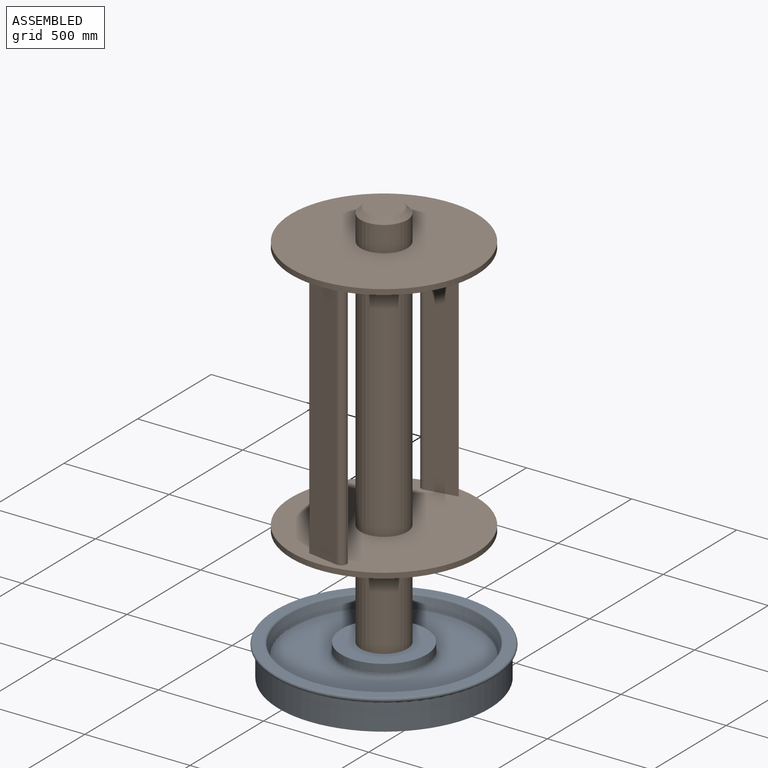
[diagram: assembled view]
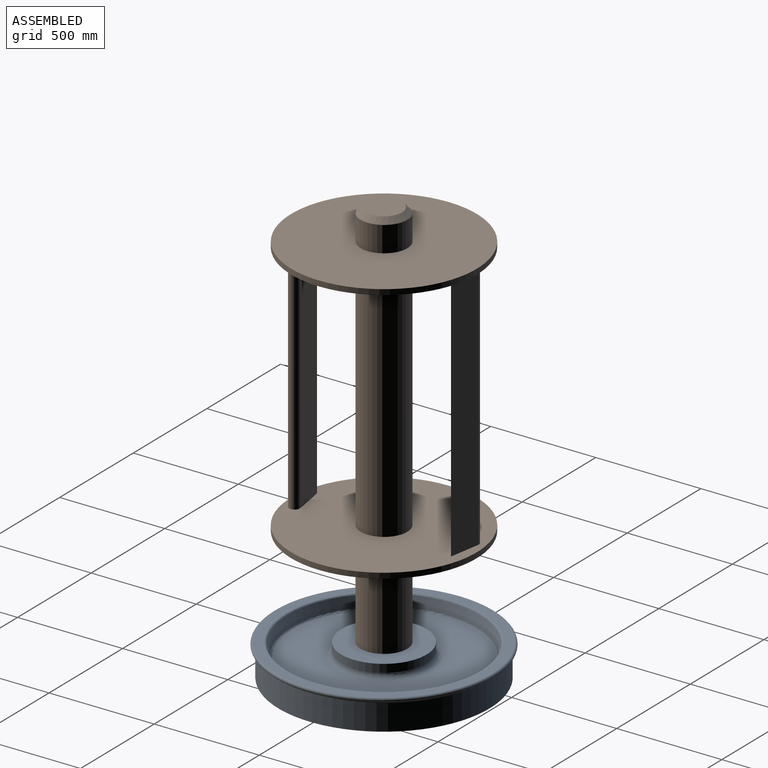
[diagram: assembled view, second angle]
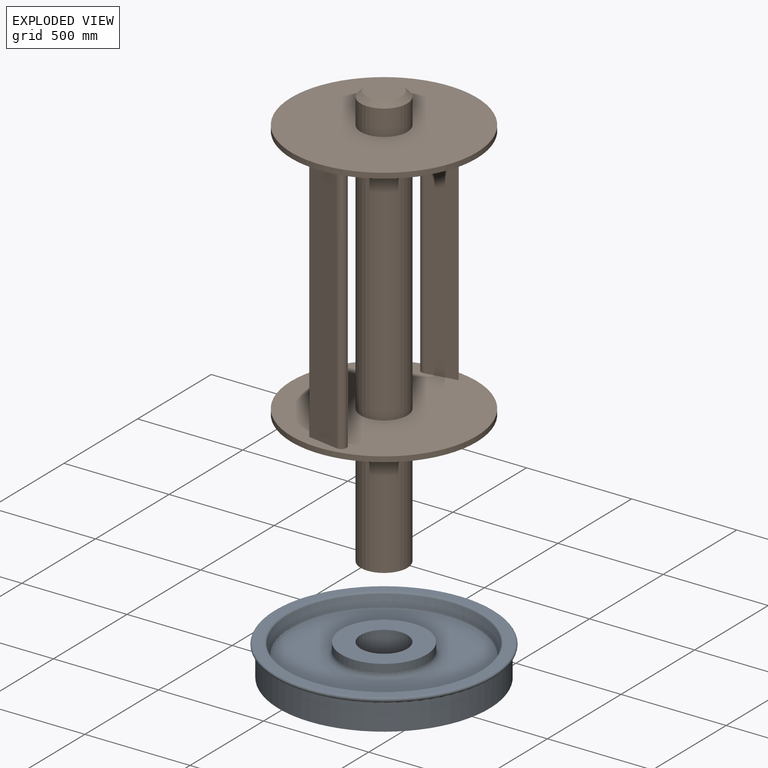
[diagram: exploded view]
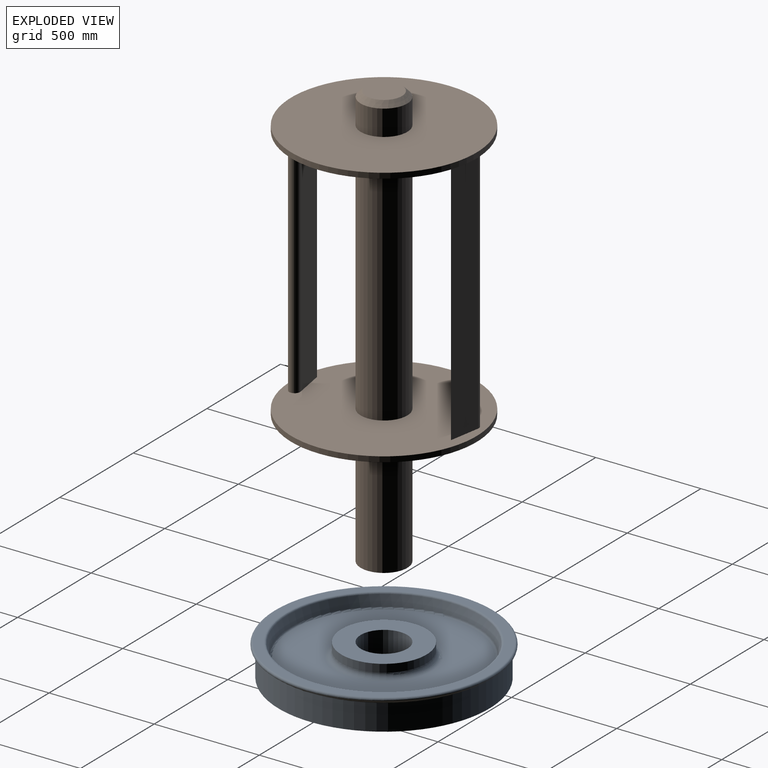
[diagram: exploded view, second angle]
ASSEMBLY  parts=2 mates=2
PART A: 20 faces, bbox 1127.2x1127.2x152.4 mm
  f0: cylinder r=203.2mm len=406.4mm, axis (0,0,1), area 48643.9mm2, adj f1,f7
  f1: torus R=228.6mm, axis (0,0,1), area 53253.6mm2, adj f0,f2
  f2: plane 870.19x870.19mm, normal (0,0,1), area 430547.9mm2, adj f1,f3
  f3: torus R=435.09mm, axis (0,0,1), area 34507.7mm2, adj f2,f4
  f4: cone r=444.29mm half-angle=15deg, axis (0,0,1), area 144837.3mm2, adj f3,f5
  f5: torus R=466.73mm, axis (0,0,1), area 36140.7mm2, adj f4,f6
  f6: plane 1022.35x1022.35mm, normal (0,0,1), area 136557.7mm2, adj f5,f10
  f7: plane 406.4x406.4mm, normal (0,0,1), area 90922.3mm2, adj f0,f19
  f8: torus R=511.18mm, axis (0,0,1), area 47484.5mm2, adj f9,f10
  f9: cylinder r=501.65mm len=1003.3mm, axis (0,0,1), area 390291.4mm2, adj f8,f11
  f10: torus R=511.18mm, axis (0,0,1), area 97249.2mm2, adj f6,f8
  f11: plane 1003.3x1003.3mm, normal (0,0,-1), area 106250.2mm2, adj f9,f17
  f12: plane 870.19x870.19mm, normal (0,0,-1), area 430547.9mm2, adj f13,f15
  f13: torus R=228.6mm, axis (0,0,1), area 53253.6mm2, adj f12,f14
  f14: cylinder r=203.2mm len=406.4mm, axis (0,0,1), area 48643.9mm2, adj f13,f18
  f15: torus R=435.09mm, axis (0,0,1), area 34507.7mm2, adj f12,f16
  f16: cone r=457.52mm half-angle=15deg, axis (0,0,-1), area 144837.3mm2, adj f15,f17
  f17: torus R=466.73mm, axis (0,0,1), area 36140.7mm2, adj f11,f16
  f18: plane 406.4x406.4mm, normal (0,0,-1), area 90922.3mm2, adj f14,f19
  f19: cylinder r=111.12mm len=222.25mm, axis (0,0,1), area 106408.6mm2, adj f7,f18
PART B: 18 faces, bbox 882.7x882.7x2021.8 mm
  f0: cylinder r=441.33mm len=882.65mm, axis (0,0,-1), area 70432.3mm2, adj f1,f2
  f1: plane 882.65x882.65mm, normal (0,0,1), area 573086.2mm2, adj f0,f15
  f2: plane 882.65x882.65mm, normal (0,0,-1), area 563050.1mm2, adj f0,f3,f4,f5,f9,f10,f11,f14
  f3: plane 1193.8x147.66mm, normal (-0.17,0.99,0), area 178862.7mm2, adj f2,f4,f5,f7
  f4: plane 1193.8x147.66mm, normal (-0.17,-0.99,0), area 178862.7mm2, adj f2,f3,f5,f7
  f5: cylinder r=25.77mm len=1193.8mm, axis (0,0,-1), area 107142.9mm2, adj f2,f3,f4,f7
  f6: cylinder r=441.33mm len=882.65mm, axis (0,0,-1), area 70432.3mm2, adj f7,f8
  f7: plane 882.65x882.65mm, normal (0,0,1), area 563050.1mm2, adj f3,f4,f5,f6,f9,f10,f11,f14
  f8: plane 882.65x882.65mm, normal (0,0,-1), area 573086.2mm2, adj f6,f13
  f9: plane 1193.8x147.66mm, normal (0.17,-0.99,0), area 178862.7mm2, adj f2,f7,f10,f11
  f10: plane 1193.8x147.66mm, normal (0.17,0.99,0), area 178862.7mm2, adj f2,f7,f9,f11
  f11: cylinder r=25.77mm len=1193.8mm, axis (0,0,-1), area 107142.9mm2, adj f2,f7,f9,f10
  f12: plane 222.25x222.25mm, normal (0,0,-1), area 38794.8mm2, adj f13
  f13: cylinder r=111.12mm len=629.92mm, axis (0,0,-1), area 439822.1mm2, adj f8,f12
  f14: cylinder r=111.12mm len=1193.8mm, axis (0,0,-1), area 833533.8mm2, adj f2,f7
  f15: cylinder r=111.12mm len=222.25mm, axis (0,0,-1), area 85126.9mm2, adj f1,f17
  f16: plane 171.45x171.45mm, normal (0,0,1), area 23086.9mm2, adj f17
  f17: cone r=85.72mm half-angle=45deg, axis (0,0,-1), area 22214.4mm2, adj f15,f16
PLACE A t=(199.57,32.99,-184.76)mm
PLACE B rot(axis=(0,0,-1),0deg) t=(199.57,32.99,445.16)mm
MATE parallel B.f13 <-> A.f0  axis (0,0,-1) through (199.57,32.99,-184.76)mm
MATE cylindrical B.f13 <-> A.f0  axis (0,0,-1) through (199.57,32.99,130.2)mm
